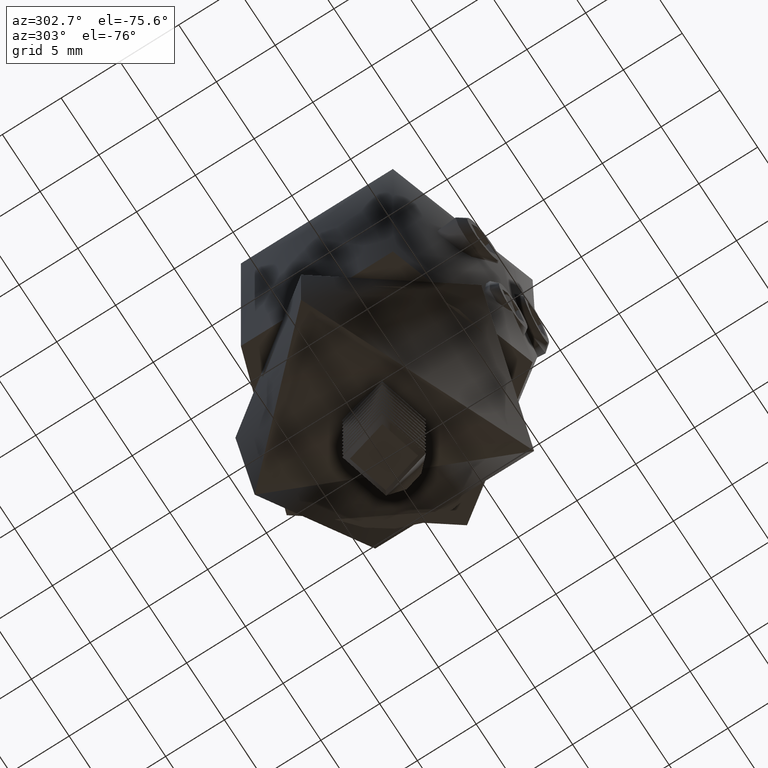
[diagram: clean part render]
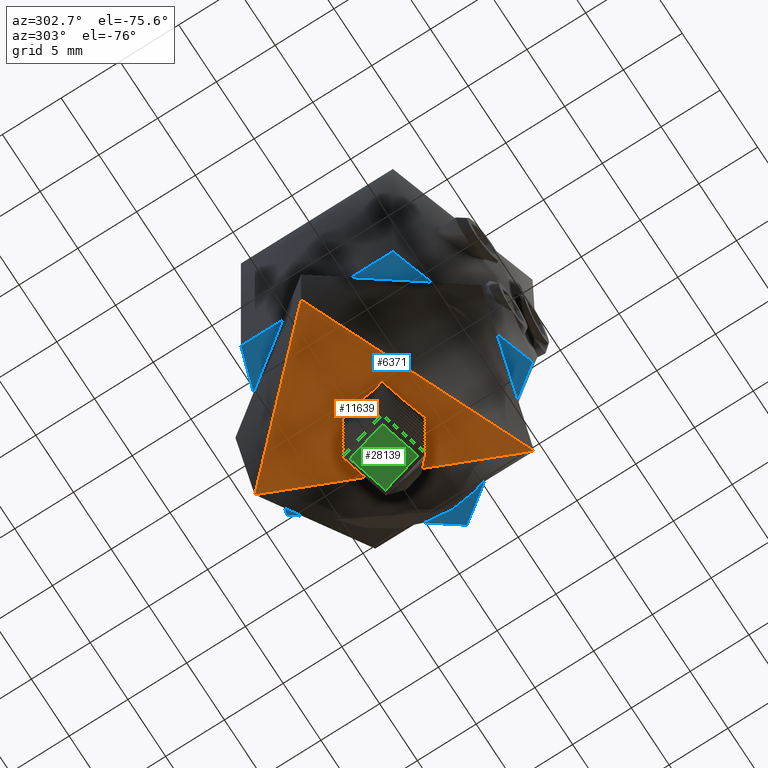
[diagram: same view with three faces highlighted in distinct colors, each labeled with its STEP entity id]
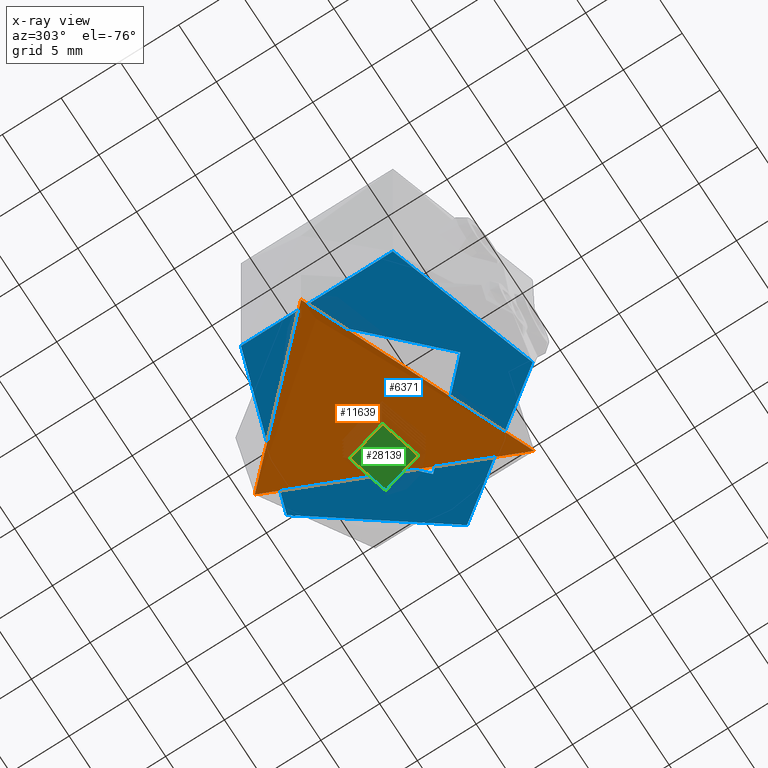
[diagram: x-ray of the same camera — body ghosted, the three highlighted faces saturated]
A machine part, auxiliary view with three faces highlighted in distinct colors.
The next image is the same camera in x-ray (body ghosted, the three faces saturated) — at least one of them is partly hidden behind the body in this view.
Their STEP definitions:

[orange] entity #11639 — the highlighted cylindrical surface (partial cylindrical patch) has radius 21.2 mm, axis along (0, 1, 0).
#590 = CARTESIAN_POINT ( 'NONE',  ( -6.766048313375106800, -5.941849588956704200, -5.207737569877101800 ) ) ;
#708 = AXIS2_PLACEMENT_3D ( 'NONE', #18371, #2709, #2618 ) ;
#763 = CARTESIAN_POINT ( 'NONE',  ( -6.570051494431052900, 6.157908511444631500, -5.142585294229899500 ) ) ;
#859 = CARTESIAN_POINT ( 'NONE',  ( 1.496328371181378400, 8.879702304195813400, -4.150857130149487900 ) ) ;
#959 = CARTESIAN_POINT ( 'NONE',  ( -8.880462410946025300, 1.491469006224789700, -6.049506213162343800 ) ) ;
#1058 = CARTESIAN_POINT ( 'NONE',  ( -8.533054436092358600, 2.922138815264545100, -5.891528669452684500 ) ) ;
#1161 = CARTESIAN_POINT ( 'NONE',  ( 7.633095921920670400, -4.777164185214712000, -5.521066813696612600 ) ) ;
#1481 = CARTESIAN_POINT ( 'NONE',  ( 4.527725506764323200, -7.799994965017364600, -4.583139751377061100 ) ) ;
#1492 = CARTESIAN_POINT ( 'NONE',  ( -4.911781572463939800, -9.868826182287614700, -4.665688964022526100 ) ) ;
#1594 = CARTESIAN_POINT ( 'NONE',  ( -9.859201474471786900, -4.930107579918083800, -6.529389052610245200 ) ) ;
#1683 = CARTESIAN_POINT ( 'NONE',  ( 2.925658849690203400, -10.60999560949298500, -4.299921466118027200 ) ) ;
#1779 = CARTESIAN_POINT ( 'NONE',  ( -6.718128661082547900, -8.717360071531967200, -5.190530764729238900 ) ) ;
#2140 = CARTESIAN_POINT ( 'NONE',  ( -9.535691784962626400, 5.529597769247907900, -6.360545004618599800 ) ) ;
#2618 = DIRECTION ( 'NONE',  ( 0.0000000000000000000, 0.0000000000000000000, 1.000000000000000000 ) ) ;
#2709 = DIRECTION ( 'NONE',  ( -0.0000000000000000000, 1.000000000000000000, -0.0000000000000000000 ) ) ;
#2808 = CARTESIAN_POINT ( 'NONE',  ( -6.161404844027698500, -6.566661741195217900, -5.013965487062177000 ) ) ;
#2975 = CARTESIAN_POINT ( 'NONE',  ( -7.311472419907164300, 5.256110834363017400, -5.399942953120392600 ) ) ;
#3068 = CARTESIAN_POINT ( 'NONE',  ( -5.501311983712244400, 7.146811310810098100, -4.820136018022904700 ) ) ;
#3168 = CARTESIAN_POINT ( 'NONE',  ( 5.507888469158010600, 7.141587104885530800, -4.821951802872820100 ) ) ;
#3211 = CARTESIAN_POINT ( 'NONE',  ( 3.927659131958692200, 10.28119688040085400, -4.464256175654600000 ) ) ;
#3271 = CARTESIAN_POINT ( 'NONE',  ( 8.702408039283348300, -2.372073640349042100, -5.968027577799811700 ) ) ;
#3369 = CARTESIAN_POINT ( 'NONE',  ( 2.930983491255340700, 8.529688198176645000, -4.296378237583076600 ) ) ;
#3498 = CARTESIAN_POINT ( 'NONE',  ( 5.496644906564072600, -7.150322684329967900, -4.818899160525555600 ) ) ;
#3608 = CARTESIAN_POINT ( 'NONE',  ( 6.726335332083523100, 8.711012763014792900, -5.193281648654439300 ) ) ;
#3704 = CARTESIAN_POINT ( 'NONE',  ( -6.430521731463011600, -8.931756784388696200, -5.096421945673252000 ) ) ;
#3748 = FACE_OUTER_BOUND ( 'NONE', #21555, .T. ) ;
#3798 = CARTESIAN_POINT ( 'NONE',  ( -10.39876306380578400, -3.605291737344606500, -6.825121906292511500 ) ) ;
#3888 = CARTESIAN_POINT ( 'NONE',  ( 8.267252112555274500, 7.264819172052006600, -5.776866993034119000 ) ) ;
#3945 = CARTESIAN_POINT ( 'NONE',  ( 1.183904790595066100, -8.926821845496235100, -4.130979375828014000 ) ) ;
#3990 = CARTESIAN_POINT ( 'NONE',  ( 10.39998561565556700, 3.601728257979621300, -6.825811692035906700 ) ) ;
#4077 = CARTESIAN_POINT ( 'NONE',  ( -10.29003781357059600, 3.904516078654900000, -6.764084175375439000 ) ) ;
#4466 = CARTESIAN_POINT ( 'NONE',  ( -4.932555817687875400, 9.858129195720231100, -4.670802810875305700 ) ) ;
#4938 = CARTESIAN_POINT ( 'NONE',  ( -8.940179620051697600, -1.192762043537303600, -6.076847759062600200 ) ) ;
#5122 = CARTESIAN_POINT ( 'NONE',  ( -2.069273427123897500, -8.763926665609215400, -4.199204624531772000 ) ) ;
#5198 = CARTESIAN_POINT ( 'NONE',  ( -8.705287611884937600, 2.359308650723922300, -5.969338804076958400 ) ) ;
#5298 = CARTESIAN_POINT ( 'NONE',  ( -1.177433114945627600, 8.942818534641482100, -4.124482320378102300 ) ) ;
#5397 = CARTESIAN_POINT ( 'NONE',  ( -2.919603497746496900, 8.533584350906096500, -4.294788581318374400 ) ) ;
#5491 = CARTESIAN_POINT ( 'NONE',  ( -4.005712576156161800, 8.080867107885596900, -4.474600650052567000 ) ) ;
#5597 = CARTESIAN_POINT ( 'NONE',  ( 7.143967367260362500, -5.505046255798366600, -5.336905660156291200 ) ) ;
#5747 = CARTESIAN_POINT ( 'NONE',  ( 2.915995473697134500, -8.535217117214015700, -4.294146457838613700 ) ) ;
#5828 = CARTESIAN_POINT ( 'NONE',  ( 9.875430665192817900, -4.898506304307883100, -6.537918412095309300 ) ) ;
#5843 = CARTESIAN_POINT ( 'NONE',  ( 4.012651566003441400, -8.077845520338664500, -4.475794371760390100 ) ) ;
#5926 = CARTESIAN_POINT ( 'NONE',  ( -7.526514171205345600, -8.029672669073887500, -5.479220454695265200 ) ) ;
#6025 = CARTESIAN_POINT ( 'NONE',  ( 6.439299872946987700, 8.925416446572302900, -5.099225199558915700 ) ) ;
#6121 = CARTESIAN_POINT ( 'NONE',  ( 8.046905916783098100, -7.508076317887003800, -5.684736167624036400 ) ) ;
#6207 = CARTESIAN_POINT ( 'NONE',  ( -7.265370947308047900, -8.266801335559645000, -5.381707135671184100 ) ) ;
#6888 = CARTESIAN_POINT ( 'NONE',  ( -7.136393349933627800, -5.491527681049624300, -5.336275164817630300 ) ) ;
#7170 = CARTESIAN_POINT ( 'NONE',  ( -8.417805771125094000, -3.197972917069187700, -5.842463500720281600 ) ) ;
#7258 = CARTESIAN_POINT ( 'NONE',  ( -5.497450429022881800, -7.131813691955859000, -4.823855749445251600 ) ) ;
#7428 = CARTESIAN_POINT ( 'NONE',  ( 7.786055058421181000, -4.523650702319240900, -5.580978259992661200 ) ) ;
#7521 = CARTESIAN_POINT ( 'NONE',  ( -8.999999999999998200, -4.336808689942017700E-016, -6.105209039950447700 ) ) ;
#7557 = CARTESIAN_POINT ( 'NONE',  ( 2.887143263169895700, 10.62062965829993500, -4.294545058129479300 ) ) ;
#7611 = CARTESIAN_POINT ( 'NONE',  ( 0.5875516269330853800, -8.985797788739242600, -4.106042185908238600 ) ) ;
#7617 = CARTESIAN_POINT ( 'NONE',  ( -2.354678229249702600, 8.707229325129510800, -4.222894217259153000 ) ) ;
#7721 = CARTESIAN_POINT ( 'NONE',  ( 6.773075127230495000, 5.933833905163503200, -5.210108331659411000 ) ) ;
#7831 = EDGE_LOOP ( 'NONE', ( #17767 ) ) ;
#7852 = CARTESIAN_POINT ( 'NONE',  ( -5.963111948670274400E-016, 10.99999999999999600, -4.099999999999997900 ) ) ;
#8050 = CARTESIAN_POINT ( 'NONE',  ( 10.71528815456446400, -2.512856684892081900, -7.007120534335335500 ) ) ;
#8150 = CARTESIAN_POINT ( 'NONE',  ( 8.946157063214458900, -6.410340987925537500, -6.078808911143985600 ) ) ;
#8238 = CARTESIAN_POINT ( 'NONE',  ( 5.550192168805615700, 9.523966257985311000, -4.830048645470335500 ) ) ;
#8333 = CARTESIAN_POINT ( 'NONE',  ( 7.302170533501584500, -8.256750257501980900, -5.390118390890345200 ) ) ;
#8417 = CARTESIAN_POINT ( 'NONE',  ( -1.195367113660796400, -8.940039705118067600, -4.125653978507203100 ) ) ;
#8429 = CARTESIAN_POINT ( 'NONE',  ( -8.261920929934328600, -7.270898062538846900, -5.774605045433948400 ) ) ;
#8518 = CARTESIAN_POINT ( 'NONE',  ( -6.751038930869318800, 8.714336666387502800, -5.194014316166082800 ) ) ;
#8613 = CARTESIAN_POINT ( 'NONE',  ( -8.278097161710386200, 7.252522033514984500, -5.781457000512866700 ) ) ;
#8700 = CARTESIAN_POINT ( 'NONE',  ( -0.6064474908965829000, -8.999256637721655800, -4.100315578128660700 ) ) ;
#8709 = CARTESIAN_POINT ( 'NONE',  ( -0.7406705943471944000, 10.99999999999999600, -4.099999999999998800 ) ) ;
#8809 = CARTESIAN_POINT ( 'NONE',  ( -10.99796142286718700, -0.7631993750306919100, -7.175848985333767700 ) ) ;
#9384 = CARTESIAN_POINT ( 'NONE',  ( -7.801320390038437600, -4.525699097909323700, -5.584505830986996600 ) ) ;
#9547 = CARTESIAN_POINT ( 'NONE',  ( -7.138145225870883500, 5.489248663871809900, -5.336902390178999600 ) ) ;
#9639 = CARTESIAN_POINT ( 'NONE',  ( -8.984718648477109300, 0.6034601397220131800, -6.098023013587534200 ) ) ;
#9929 = CARTESIAN_POINT ( 'NONE',  ( 4.783214464045441300, 7.629261748838103200, -4.645153529278331900 ) ) ;
#10175 = CARTESIAN_POINT ( 'NONE',  ( 2.534605363637614200, 10.71016810989787000, -4.249017149375354100 ) ) ;
#10270 = CARTESIAN_POINT ( 'NONE',  ( 8.716802038868266300, 6.718810706542202900, -5.973398071171113900 ) ) ;
#10363 = CARTESIAN_POINT ( 'NONE',  ( 10.99796416059426800, 0.7624273080982849600, -7.175850647029815100 ) ) ;
#10465 = CARTESIAN_POINT ( 'NONE',  ( 8.930618402654802800, 6.431968227375036500, -6.071576620147032700 ) ) ;
#10563 = CARTESIAN_POINT ( 'NONE',  ( 10.85767978748990900, -1.800732791529440200, -7.091276019088582000 ) ) ;
#10647 = CARTESIAN_POINT ( 'NONE',  ( -8.926501038482168600, -6.437702758294282300, -6.069660064316932900 ) ) ;
#10831 = CARTESIAN_POINT ( 'NONE',  ( -10.98332551298761900, 0.7085810926461737500, -7.166927299971074900 ) ) ;
#10923 = CARTESIAN_POINT ( 'NONE',  ( -8.041161226536596400, 7.514245521208876800, -5.682374260703286800 ) ) ;
#11010 = CARTESIAN_POINT ( 'NONE',  ( -10.91137382201429400, 1.441335424306747800, -7.123540328627244700 ) ) ;
#11481 = CARTESIAN_POINT ( 'NONE',  ( -8.519085452557781900, -2.917802884023282100, -5.886750800336528800 ) ) ;
#11639 = ADVANCED_FACE ( 'NONE', ( #13049, #3748 ), #14771, .F. ) ;
#11737 = CARTESIAN_POINT ( 'NONE',  ( 5.955765860730115200, 6.772806331197206700, -4.949163426065095600 ) ) ;
#11840 = CARTESIAN_POINT ( 'NONE',  ( 8.064130121432253200, -4.006978217306454800, -5.693055384883214400 ) ) ;
#12035 = CARTESIAN_POINT ( 'NONE',  ( -8.075678375321279700, 4.016880884885597200, -5.696806480158374000 ) ) ;
#12140 = CARTESIAN_POINT ( 'NONE',  ( 8.939971974155945100, -1.198140283409449900, -6.076733770865095300 ) ) ;
#12481 = CARTESIAN_POINT ( 'NONE',  ( 10.92357506537257800, 1.484248778063102800, -7.130138771131386800 ) ) ;
#12579 = CARTESIAN_POINT ( 'NONE',  ( 5.570603964703565200, -9.512269030523052400, -4.835539107418974900 ) ) ;
#12671 = CARTESIAN_POINT ( 'NONE',  ( 8.283413177794551900, -7.246433364916085500, -5.783717687845111800 ) ) ;
#12761 = CARTESIAN_POINT ( 'NONE',  ( 2.568634603435095100, -10.70219005078454100, -4.253079634565902500 ) ) ;
#12857 = CARTESIAN_POINT ( 'NONE',  ( 4.943802252208721300, -9.852434326155041300, -4.673528950097457700 ) ) ;
#13045 = CARTESIAN_POINT ( 'NONE',  ( -8.728404665100930200, 6.703798957873231300, -5.978629307324234300 ) ) ;
#13049 = FACE_BOUND ( 'NONE', #7831, .T. ) ;
#13273 = EDGE_CURVE ( 'NONE', #13831, #13831, #19163, .T. ) ;
#13831 = VERTEX_POINT ( 'NONE', #28388 ) ;
#13955 = CARTESIAN_POINT ( 'NONE',  ( 7.790441516584820600, 4.516112634829499800, -5.582711630924207700 ) ) ;
#14049 = CARTESIAN_POINT ( 'NONE',  ( 6.575604964608817900, 6.151986061130800800, -5.144396724207851400 ) ) ;
#14146 = CARTESIAN_POINT ( 'NONE',  ( 8.999172276844687300, -0.6052519994996052900, -6.104820939877708200 ) ) ;
#14253 = CARTESIAN_POINT ( 'NONE',  ( 8.536066545482773500, 2.912700169554780100, -5.892880292925772400 ) ) ;
#14350 = CARTESIAN_POINT ( 'NONE',  ( 8.189956734736409100, -3.743000991661148600, -5.745470069114856100 ) ) ;
#14655 = EDGE_CURVE ( 'NONE', #15542, #15542, #15803, .T. ) ;
#14676 = CARTESIAN_POINT ( 'NONE',  ( 7.533196738643101600, 8.023387466506012100, -5.481765524036191600 ) ) ;
#14767 = CARTESIAN_POINT ( 'NONE',  ( -3.914632898889373700, -10.28617914363168700, -4.461795979422854300 ) ) ;
#14771 = CYLINDRICAL_SURFACE ( 'NONE', #708, 21.19999999999999900 ) ;
#14867 = CARTESIAN_POINT ( 'NONE',  ( 11.00095671596696400, -0.3362723641391804900, -7.177667018426051400 ) ) ;
#14959 = CARTESIAN_POINT ( 'NONE',  ( 9.538610654621663800, -5.524463585205235300, -6.362033924530924100 ) ) ;
#15048 = CARTESIAN_POINT ( 'NONE',  ( 10.91155973602406900, -1.439831204387120600, -7.123652135472318600 ) ) ;
#15148 = CARTESIAN_POINT ( 'NONE',  ( -2.928297529281811000, -8.515469180634774200, -4.301264842937778900 ) ) ;
#15236 = CARTESIAN_POINT ( 'NONE',  ( -10.85738286873164400, 1.802597244722829600, -7.091098205876933800 ) ) ;
#15339 = CARTESIAN_POINT ( 'NONE',  ( -3.604598230182754400, 10.39897595309302300, -4.405741304753418900 ) ) ;
#15431 = CARTESIAN_POINT ( 'NONE',  ( -8.942069916354782300, 6.416062105208422600, -6.076902462246278200 ) ) ;
#15542 = VERTEX_POINT ( 'NONE', #19276 ) ;
#15803 = B_SPLINE_CURVE_WITH_KNOTS ( 'NONE', 3,
 ( #7852, #27340, #16681, #10175, #7557, #16390, #3211, #18586, #8238, #6025, #3608, #23585, #14676, #28008, #3888, #10270, #10465, #25609, #25990, #16870, #3990, #19087, #19271, #12481, #10363, #14867, #25713, #15048, #10563, #8050, #18983, #25803, #21563, #5828, #14959, #8150, #21194, #12671, #6121, #8333, #21478, #12579, #12857, #23677, #21289, #1683, #12761, #23388, #17147, #27917, #17063, #25902, #28103, #23490, #14767, #1492, #27819, #3704, #1779, #6207, #5926, #19366, #8429, #23763, #10647, #28187, #1594, #16966, #3798, #19181, #16776, #21388, #8809, #24149, #10831, #11010, #15236, #24047, #21659, #17241, #4077, #17518, #2140, #15431, #13045, #8613, #10923, #21756, #8518, #19459, #4466, #23947, #15339, #28382, #26171, #26360, #8709, #19840 ),
 .UNSPECIFIED., .T., .F.,
 ( 4, 2, 2, 2, 2, 2, 2, 2, 2, 2, 2, 2, 2, 2, 2, 2, 2, 2, 2, 2, 2, 2, 2, 2, 2, 2, 2, 2, 2, 2, 2, 2, 2, 2, 2, 2, 2, 2, 2, 2, 2, 2, 2, 2, 2, 2, 2, 2, 4 ),
 ( 0.0000000000000000000, 0.002187934825496555500, 0.003281902238244833300, 0.004375869650993111100, 0.006563804476489668400, 0.007657771889237949600, 0.008751739301986230900, 0.009845706714734513800, 0.01093967412748279900, 0.01312760895297936300, 0.01422157636572764600, 0.01531554377847592700, 0.01750347860397248900, 0.01859744601672077100, 0.01969141342946905200, 0.02078538084221733300, 0.02187934825496561800, 0.02406728308046217700, 0.02516125049321046200, 0.02625521790595873900, 0.02844315273145530200, 0.03063108755695186100, 0.03172505496970014200, 0.03281902238244841600, 0.03500695720794497900, 0.03719489203344153400, 0.03828885944618981600, 0.03938282685893808300, 0.04157076168443464600, 0.04266472909718292000, 0.04375869650993120100, 0.04485266392267948200, 0.04594663133542775000, 0.04813456616092431200, 0.04922853357367258700, 0.05032250098642086800, 0.05251043581191741600, 0.05360440322466569800, 0.05469837063741397900, 0.05579233805016225300, 0.05688630546291053400, 0.05907424028840709000, 0.06016820770115536400, 0.06126217511390364600, 0.06345010993940018700, 0.06563804476489675000, 0.06673201217764501700, 0.06782597959039329800, 0.07001391441588986100 ),
 .UNSPECIFIED. ) ;
#15993 = CARTESIAN_POINT ( 'NONE',  ( -6.571030345259965000, -6.156745591378432400, -5.142925159791035500 ) ) ;
#16157 = CARTESIAN_POINT ( 'NONE',  ( -6.767985068317843300, 5.939641931502982300, -5.208390767290663500 ) ) ;
#16249 = CARTESIAN_POINT ( 'NONE',  ( -4.531143009220556900, 7.798082359429833400, -4.583870890236023700 ) ) ;
#16349 = CARTESIAN_POINT ( 'NONE',  ( 1.198462509687663300, 8.924876651340714100, -4.131800132847653900 ) ) ;
#16390 = CARTESIAN_POINT ( 'NONE',  ( 3.585217736092202000, 10.40574765913711100, -4.402369815650628100 ) ) ;
#16448 = CARTESIAN_POINT ( 'NONE',  ( 8.528391803012048900, -2.933994583505465500, -5.889521855624834300 ) ) ;
#16544 = CARTESIAN_POINT ( 'NONE',  ( 4.532780756239583700, 7.780812614444888800, -4.588547621772297800 ) ) ;
#16681 = CARTESIAN_POINT ( 'NONE',  ( 1.466544211326207300, 10.92597589430077300, -4.138675339598427700 ) ) ;
#16776 = CARTESIAN_POINT ( 'NONE',  ( -10.70548991689183000, -2.554336560334252900, -7.001377042621071700 ) ) ;
#16870 = CARTESIAN_POINT ( 'NONE',  ( 10.27662386676603900, 3.939315236133006200, -6.756649986908883000 ) ) ;
#16966 = CARTESIAN_POINT ( 'NONE',  ( -10.27516049920183700, -3.943162478467036700, -6.755836525236140300 ) ) ;
#17063 = CARTESIAN_POINT ( 'NONE',  ( -1.450018764293070400, -10.92823137575286400, -4.137506241678363700 ) ) ;
#17147 = CARTESIAN_POINT ( 'NONE',  ( 0.7597687210070890300, -10.99873671393910600, -4.100655477942105200 ) ) ;
#17241 = CARTESIAN_POINT ( 'NONE',  ( -10.41407464369210500, 3.560700495590563000, -6.833762000131984300 ) ) ;
#17518 = CARTESIAN_POINT ( 'NONE',  ( -9.873161535309449700, 4.903180330197445300, -6.536714148454555200 ) ) ;
#17767 = ORIENTED_EDGE ( 'NONE', *, *, #13273, .T. ) ;
#18092 = CARTESIAN_POINT ( 'NONE',  ( -8.999999999999998200, -0.6022301676324370900, -6.105209039950445900 ) ) ;
#18184 = CARTESIAN_POINT ( 'NONE',  ( -5.946797421235012300, -6.761680869955747600, -4.949814619520468600 ) ) ;
#18211 = CARTESIAN_POINT ( 'NONE',  ( 2.349030549496113900, -8.708199343826665400, -4.222486883313147000 ) ) ;
#18354 = CARTESIAN_POINT ( 'NONE',  ( -7.796916004019780500, 4.532705707074541100, -5.582807033181328600 ) ) ;
#18371 = CARTESIAN_POINT ( 'NONE',  ( 0.0000000000000000000, -11.00000000000000000, -25.30000000000000100 ) ) ;
#18454 = CARTESIAN_POINT ( 'NONE',  ( 3.745224452304392000, 8.189008184627280000, -4.431627000577344200 ) ) ;
#18586 = CARTESIAN_POINT ( 'NONE',  ( 4.923079105735862300, 9.863131060690513200, -4.668417414044760100 ) ) ;
#18650 = CARTESIAN_POINT ( 'NONE',  ( 0.6023502318451234800, 8.984815514353627500, -4.106459186793927100 ) ) ;
#18742 = CARTESIAN_POINT ( 'NONE',  ( -0.5856921983027960600, 9.000526453280953000, -4.099776505755870400 ) ) ;
#18983 = CARTESIAN_POINT ( 'NONE',  ( 10.62677363607029200, -2.864078358060011100, -6.955340876414151600 ) ) ;
#19087 = CARTESIAN_POINT ( 'NONE',  ( 10.61508951118036300, 2.907236130726282800, -6.948563840571258000 ) ) ;
#19132 = CARTESIAN_POINT ( 'NONE',  ( -4.529556461873095700, -7.799281068273511000, -4.583449115028530600 ) ) ;
#19159 = CARTESIAN_POINT ( 'NONE',  ( 5.953767838570621900, -6.774246431175877000, -4.948631012675688700 ) ) ;
#19163 = B_SPLINE_CURVE_WITH_KNOTS ( 'NONE', 3,
 ( #20215, #18092, #4938, #26934, #22414, #11481, #7170, #20406, #9384, #24719, #6888, #590, #15993, #2808, #18184, #7258, #23240, #19132, #22912, #23502, #15148, #21966, #5122, #8417, #8700, #22482, #7611, #3945, #24659, #18211, #5747, #5843, #1481, #3498, #19159, #27494, #5597, #1161, #7428, #11840, #14350, #16448, #3271, #12140, #14146, #25275, #24982, #27397, #20961, #22864, #14253, #27196, #20866, #13955, #22667, #23053, #24887, #7721, #14049, #11737, #3168, #9929, #16544, #27299, #18454, #3369, #25173, #859, #16349, #18650, #27098, #18742, #5298, #7617, #5397, #5491, #16249, #3068, #22763, #763, #16157, #9547, #2975, #18354, #12035, #1058, #5198, #959, #20563, #9639, #20659, #7521 ),
 .UNSPECIFIED., .T., .F.,
 ( 4, 2, 2, 2, 2, 2, 2, 2, 2, 2, 2, 2, 2, 2, 2, 2, 2, 2, 2, 2, 2, 2, 2, 2, 2, 2, 2, 2, 2, 2, 2, 2, 2, 2, 2, 2, 2, 2, 2, 2, 2, 2, 2, 2, 2, 4 ),
 ( 0.0000000000000000000, 0.001779121269481612600, 0.002668681904222417900, 0.003558242538963223500, 0.005337363808444834900, 0.006226924443185639200, 0.007116485077926443600, 0.008006045712667248000, 0.008895606347408054100, 0.01067472761688966300, 0.01156428825163046700, 0.01245384888637127200, 0.01423297015585288200, 0.01512253079059368600, 0.01601209142533449200, 0.01779121269481610800, 0.01957033396429772000, 0.02134945523377933300, 0.02312857650326094500, 0.02401813713800174700, 0.02490769777274255700, 0.02668681904222416900, 0.02846594031170578100, 0.02935550094644658700, 0.03024506158118739000, 0.03202418285066900600, 0.03291374348540981200, 0.03380330412015061100, 0.03469286475489141700, 0.03558242538963221600, 0.03736154665911381500, 0.03825110729385462100, 0.03914066792859542700, 0.04091978919807702500, 0.04180934983281783100, 0.04269891046755863000, 0.04447803173704023600, 0.04625715300652184100, 0.04803627427600344600, 0.04981539554548505800, 0.05070495618022586400, 0.05159451681496666400, 0.05337363808444828300, 0.05515275935392988800, 0.05604231998867070100, 0.05693188062341150000 ),
 .UNSPECIFIED. ) ;
#19181 = CARTESIAN_POINT ( 'NONE',  ( -10.61428986060925800, -2.910198021355981700, -6.948099700862258000 ) ) ;
#19271 = CARTESIAN_POINT ( 'NONE',  ( 10.70609504061672500, 2.551744627168781600, -7.001731876962372400 ) ) ;
#19276 = CARTESIAN_POINT ( 'NONE',  ( 0.0000000000000000000, 11.00000000000000000, -4.099999999999999600 ) ) ;
#19366 = CARTESIAN_POINT ( 'NONE',  ( -8.024789599291722200, -7.531720296779902000, -5.675666400103545500 ) ) ;
#19459 = CARTESIAN_POINT ( 'NONE',  ( -5.560167059122320200, 9.518441703131333800, -4.832666777537950200 ) ) ;
#19840 = CARTESIAN_POINT ( 'NONE',  ( -5.963111948670274400E-016, 10.99999999999999600, -4.099999999999997900 ) ) ;
#19849 = ORIENTED_EDGE ( 'NONE', *, *, #14655, .T. ) ;
#20215 = CARTESIAN_POINT ( 'NONE',  ( -8.999999999999998200, -4.336808689942017700E-016, -6.105209039950447700 ) ) ;
#20406 = CARTESIAN_POINT ( 'NONE',  ( -8.077715715060875800, -4.012037878863899300, -5.697672808785785700 ) ) ;
#20563 = CARTESIAN_POINT ( 'NONE',  ( -8.924885096745489600, 1.198231756554560800, -6.070140005998572600 ) ) ;
#20659 = CARTESIAN_POINT ( 'NONE',  ( -8.999999999999998200, 0.3011150838162157100, -6.105209039950447700 ) ) ;
#20866 = CARTESIAN_POINT ( 'NONE',  ( 8.068293523425875700, 3.998611255628528900, -5.694769083929055700 ) ) ;
#20961 = CARTESIAN_POINT ( 'NONE',  ( 8.883445497185357800, 1.474070503388015000, -6.050882716875976900 ) ) ;
#21194 = CARTESIAN_POINT ( 'NONE',  ( 8.732908924252623000, -6.697912518608936800, -5.980670019835080200 ) ) ;
#21289 = CARTESIAN_POINT ( 'NONE',  ( 3.618056783575517100, -10.39428456648433000, -4.408077081206617900 ) ) ;
#21388 = CARTESIAN_POINT ( 'NONE',  ( -10.92342032833976600, -1.485761362717690700, -7.130042533941778300 ) ) ;
#21478 = CARTESIAN_POINT ( 'NONE',  ( 6.759157635817614600, -8.707966392607833200, -5.196776969607142000 ) ) ;
#21555 = EDGE_LOOP ( 'NONE', ( #19849 ) ) ;
#21563 = CARTESIAN_POINT ( 'NONE',  ( 10.29149823902169200, -3.900632987773532200, -6.764897543316115100 ) ) ;
#21659 = CARTESIAN_POINT ( 'NONE',  ( -10.62600282385767500, 2.866984947825586900, -6.954892735676653900 ) ) ;
#21756 = CARTESIAN_POINT ( 'NONE',  ( -7.295062090776498900, 8.263093100550669600, -5.387488275840111900 ) ) ;
#21966 = CARTESIAN_POINT ( 'NONE',  ( -2.360735361079838100, -8.689940755913459800, -4.229909037420219100 ) ) ;
#22414 = CARTESIAN_POINT ( 'NONE',  ( -8.693075955343484700, -2.349217114833196600, -5.964036308711038200 ) ) ;
#22482 = CARTESIAN_POINT ( 'NONE',  ( 0.2865226143655705300, -9.000361350476717700, -4.099846596592881200 ) ) ;
#22667 = CARTESIAN_POINT ( 'NONE',  ( 7.639907694094669700, 4.766181298621799700, -5.523707296290868200 ) ) ;
#22763 = CARTESIAN_POINT ( 'NONE',  ( -5.950024793402113800, 6.777821217551548600, -4.947482170566961400 ) ) ;
#22864 = CARTESIAN_POINT ( 'NONE',  ( 8.708359458168317200, 2.349133148422245300, -5.970722831128997900 ) ) ;
#22912 = CARTESIAN_POINT ( 'NONE',  ( -4.015580886328729400, -8.075779872960255900, -4.476572724249879600 ) ) ;
#23053 = CARTESIAN_POINT ( 'NONE',  ( 7.316073530914030300, 5.249737311130735100, -5.401632962292480600 ) ) ;
#23240 = CARTESIAN_POINT ( 'NONE',  ( -5.261681691625372400, -7.307607166974759300, -4.761796661982787200 ) ) ;
#23388 = CARTESIAN_POINT ( 'NONE',  ( 1.489797381646272400, -10.92334775597403200, -4.140050422054529600 ) ) ;
#23490 = CARTESIAN_POINT ( 'NONE',  ( -3.571492123359850400, -10.41047811056077100, -4.400012454521670300 ) ) ;
#23502 = CARTESIAN_POINT ( 'NONE',  ( -3.205093018567955400, -8.415055338208809100, -4.341889825580585300 ) ) ;
#23585 = CARTESIAN_POINT ( 'NONE',  ( 7.272540038032671500, 8.260477695161069900, -5.384331011608393800 ) ) ;
#23677 = CARTESIAN_POINT ( 'NONE',  ( 3.955618928625290700, -10.27039383892053300, -4.469584712208584800 ) ) ;
#23763 = CARTESIAN_POINT ( 'NONE',  ( -8.712288311989484100, -6.724680546843049300, -5.971357576046584900 ) ) ;
#23947 = CARTESIAN_POINT ( 'NONE',  ( -3.942729300353561500, 10.27536326353784100, -4.467132781234059100 ) ) ;
#24047 = CARTESIAN_POINT ( 'NONE',  ( -10.71469878810898100, 2.515422323389398000, -7.006774554870275100 ) ) ;
#24149 = CARTESIAN_POINT ( 'NONE',  ( -11.00095804591470900, 0.3366441121642695900, -7.177667825653625900 ) ) ;
#24659 = CARTESIAN_POINT ( 'NONE',  ( 1.478072324521911000, -8.882734505041488800, -4.149582081430979800 ) ) ;
#24719 = CARTESIAN_POINT ( 'NONE',  ( -7.312433258681626700, -5.254898464817231700, -5.400285243842547300 ) ) ;
#24887 = CARTESIAN_POINT ( 'NONE',  ( 7.142772226264597200, 5.483223177737658100, -5.338559700049895400 ) ) ;
#24982 = CARTESIAN_POINT ( 'NONE',  ( 8.986205239822110600, 0.5808486025061188100, -6.098720092987603500 ) ) ;
#25173 = CARTESIAN_POINT ( 'NONE',  ( 2.369100941744506400, 8.702862009132202200, -4.224698540167210600 ) ) ;
#25275 = CARTESIAN_POINT ( 'NONE',  ( 9.000400974029080500, 0.2839722160764800400, -6.105397047312539600 ) ) ;
#25609 = CARTESIAN_POINT ( 'NONE',  ( 9.525129818815097200, 5.547661062277845700, -6.355218532546477800 ) ) ;
#25713 = CARTESIAN_POINT ( 'NONE',  ( 10.98336212680088200, -0.7078178872453675400, -7.166949678647618800 ) ) ;
#25803 = CARTESIAN_POINT ( 'NONE',  ( 10.41528117107561800, -3.557130990113242400, -6.834444108008070500 ) ) ;
#25902 = CARTESIAN_POINT ( 'NONE',  ( -2.519497726041662700, -10.71374491310898400, -4.247196022134676100 ) ) ;
#25990 = CARTESIAN_POINT ( 'NONE',  ( 9.861474882267891900, 4.925456695663828400, -6.530593393120652100 ) ) ;
#26171 = CARTESIAN_POINT ( 'NONE',  ( -2.553370281160614500, 10.70585427446112400, -4.251214984033963700 ) ) ;
#26360 = CARTESIAN_POINT ( 'NONE',  ( -1.473171373248839200, 10.92565001544014100, -4.138857122798814500 ) ) ;
#26934 = CARTESIAN_POINT ( 'NONE',  ( -8.765548746403897700, -2.062165950460746400, -5.996910775638053100 ) ) ;
#27098 = CARTESIAN_POINT ( 'NONE',  ( 0.3048979933382200400, 8.999731393797215900, -4.100114030898146700 ) ) ;
#27196 = CARTESIAN_POINT ( 'NONE',  ( 8.195999223167366000, 3.729967871242132500, -5.747998092720919800 ) ) ;
#27299 = CARTESIAN_POINT ( 'NONE',  ( 4.013155420945843800, 8.061124604704581000, -4.481620030197767300 ) ) ;
#27340 = CARTESIAN_POINT ( 'NONE',  ( 0.7406705943471931800, 10.99999999999999800, -4.099999999999997900 ) ) ;
#27397 = CARTESIAN_POINT ( 'NONE',  ( 8.927896380613049100, 1.175557709462170100, -6.071539299863844400 ) ) ;
#27494 = CARTESIAN_POINT ( 'NONE',  ( 6.775583308319266300, -5.952246384174823200, -5.207288834857331800 ) ) ;
#27819 = CARTESIAN_POINT ( 'NONE',  ( -5.539944961748634700, -9.529982465774116600, -4.827244602517177800 ) ) ;
#27917 = CARTESIAN_POINT ( 'NONE',  ( -0.7227376097852442600, -11.00123212005704200, -4.099360693089264100 ) ) ;
#28008 = CARTESIAN_POINT ( 'NONE',  ( 8.030553191338350800, 7.525557453230566900, -5.678030519632615700 ) ) ;
#28103 = CARTESIAN_POINT ( 'NONE',  ( -2.872500579954685700, -10.62461062325798800, -4.292530475887139700 ) ) ;
#28187 = CARTESIAN_POINT ( 'NONE',  ( -9.522201759813423600, -5.552785249052767800, -6.353727201024288900 ) ) ;
#28382 = CARTESIAN_POINT ( 'NONE',  ( -2.911010120311582600, 10.61404019935326200, -4.297876419172094000 ) ) ;
#28388 = CARTESIAN_POINT ( 'NONE',  ( -8.999999999999998200, 0.0000000000000000000, -6.105209039950445900 ) ) ;

[blue] entity #6371 — the highlighted planar face has unit normal (0, 0, 1).
#27 = DIRECTION ( 'NONE',  ( -0.0000000000000000000, -0.0000000000000000000, 1.000000000000000000 ) ) ;
#76 = CIRCLE ( 'NONE', #8589, 6.500000000000016900 ) ;
#1432 = VERTEX_POINT ( 'NONE', #17341 ) ;
#1502 = CARTESIAN_POINT ( 'NONE',  ( 0.0000000000000000000, 0.0000000000000000000, 0.0000000000000000000 ) ) ;
#6288 = DIRECTION ( 'NONE',  ( 1.000000000000000000, 0.0000000000000000000, 0.0000000000000000000 ) ) ;
#6371 = ADVANCED_FACE ( 'NONE', ( #21037, #25493 ), #27995, .F. ) ;
#8589 = AXIS2_PLACEMENT_3D ( 'NONE', #1502, #16590, #25414 ) ;
#8598 = ORIENTED_EDGE ( 'NONE', *, *, #18015, .F. ) ;
#12463 = VERTEX_POINT ( 'NONE', #26457 ) ;
#15240 = CARTESIAN_POINT ( 'NONE',  ( 0.0000000000000000000, 0.0000000000000000000, 0.0000000000000000000 ) ) ;
#16590 = DIRECTION ( 'NONE',  ( -0.0000000000000000000, -0.0000000000000000000, 1.000000000000000000 ) ) ;
#16951 = DIRECTION ( 'NONE',  ( 0.0000000000000000000, -0.0000000000000000000, 1.000000000000000000 ) ) ;
#17341 = CARTESIAN_POINT ( 'NONE',  ( 11.00000000000000000, 0.0000000000000000000, 0.0000000000000000000 ) ) ;
#17451 = AXIS2_PLACEMENT_3D ( 'NONE', #23569, #16951, #6288 ) ;
#18015 = EDGE_CURVE ( 'NONE', #1432, #1432, #26078, .T. ) ;
#18016 = EDGE_LOOP ( 'NONE', ( #21896 ) ) ;
#19170 = DIRECTION ( 'NONE',  ( 1.000000000000000000, 0.0000000000000000000, 0.0000000000000000000 ) ) ;
#20407 = EDGE_LOOP ( 'NONE', ( #8598 ) ) ;
#21037 = FACE_BOUND ( 'NONE', #18016, .T. ) ;
#21572 = AXIS2_PLACEMENT_3D ( 'NONE', #15240, #27, #19170 ) ;
#21896 = ORIENTED_EDGE ( 'NONE', *, *, #28516, .T. ) ;
#23569 = CARTESIAN_POINT ( 'NONE',  ( 0.0000000000000000000, 0.0000000000000000000, 0.0000000000000000000 ) ) ;
#25414 = DIRECTION ( 'NONE',  ( 1.000000000000000000, 0.0000000000000000000, 0.0000000000000000000 ) ) ;
#25493 = FACE_OUTER_BOUND ( 'NONE', #20407, .T. ) ;
#26078 = CIRCLE ( 'NONE', #21572, 11.00000000000000000 ) ;
#26457 = CARTESIAN_POINT ( 'NONE',  ( 6.500000000000016900, 0.0000000000000000000, 0.0000000000000000000 ) ) ;
#27995 = PLANE ( 'NONE',  #17451 ) ;
#28516 = EDGE_CURVE ( 'NONE', #12463, #12463, #76, .T. ) ;

[green] entity #28139 — the highlighted planar face has unit normal (0, 0, -1).
#431 = CARTESIAN_POINT ( 'NONE',  ( 25.00000000000000000, 2.445500000000000000, 0.0000000000000000000 ) ) ;
#978 = CIRCLE ( 'NONE', #25997, 2.445500000000000000 ) ;
#4838 = VERTEX_POINT ( 'NONE', #26178 ) ;
#5885 = EDGE_LOOP ( 'NONE', ( #10166 ) ) ;
#9846 = DIRECTION ( 'NONE',  ( -1.000000000000000000, -0.0000000000000000000, -0.0000000000000000000 ) ) ;
#10105 = FACE_OUTER_BOUND ( 'NONE', #5885, .T. ) ;
#10166 = ORIENTED_EDGE ( 'NONE', *, *, #18309, .F. ) ;
#11650 = DIRECTION ( 'NONE',  ( 0.0000000000000000000, 0.0000000000000000000, 1.000000000000000000 ) ) ;
#15828 = DIRECTION ( 'NONE',  ( 1.000000000000000000, 0.0000000000000000000, 0.0000000000000000000 ) ) ;
#18309 = EDGE_CURVE ( 'NONE', #4838, #4838, #978, .T. ) ;
#22435 = DIRECTION ( 'NONE',  ( 0.0000000000000000000, 0.0000000000000000000, -1.000000000000000000 ) ) ;
#22583 = CARTESIAN_POINT ( 'NONE',  ( 25.00000000000000000, 0.0000000000000000000, 0.0000000000000000000 ) ) ;
#24228 = AXIS2_PLACEMENT_3D ( 'NONE', #431, #15828, #22435 ) ;
#25997 = AXIS2_PLACEMENT_3D ( 'NONE', #22583, #9846, #11650 ) ;
#26178 = CARTESIAN_POINT ( 'NONE',  ( 25.00000000000000000, 0.0000000000000000000, 2.445500000000000000 ) ) ;
#26768 = PLANE ( 'NONE',  #24228 ) ;
#28139 = ADVANCED_FACE ( 'NONE', ( #10105 ), #26768, .T. ) ;